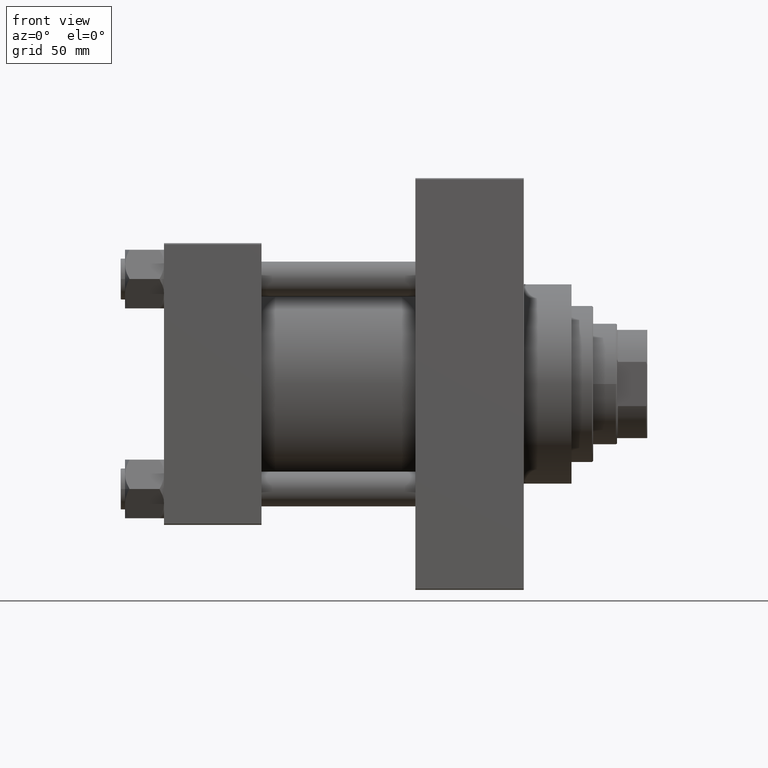
[diagram: clean part render]
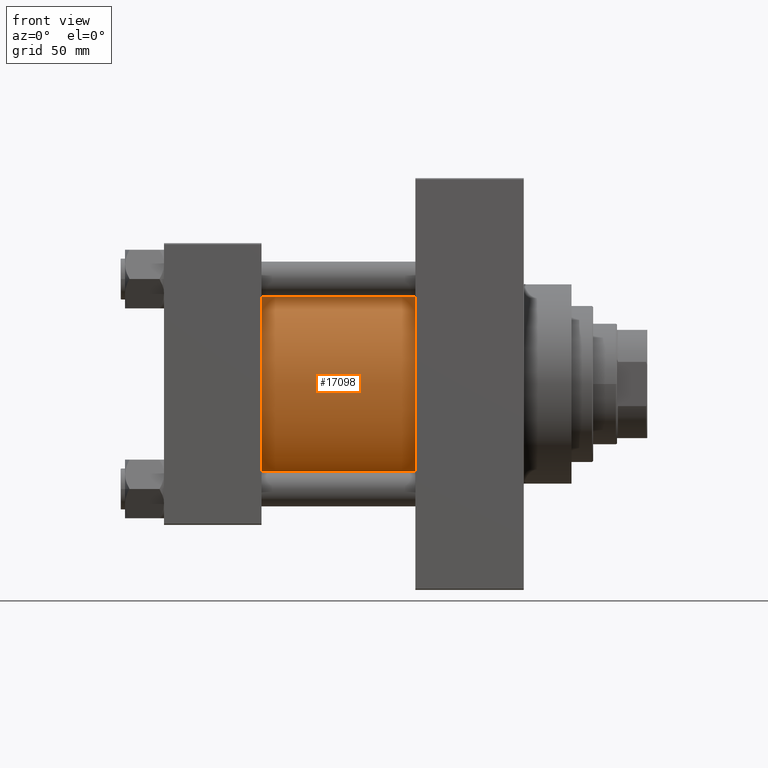
[diagram: same view with one face highlighted and labeled with its STEP entity id]
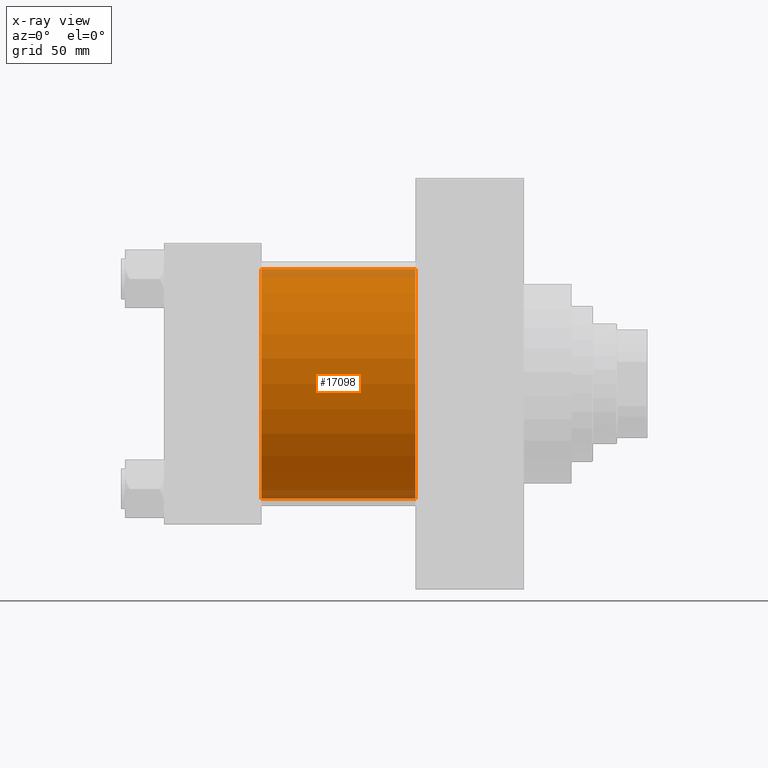
[diagram: x-ray of the same camera — body ghosted, the highlighted face saturated]
A machine part, front view. The second image highlights one B-rep face of the part: STEP entity #17098.
The next image is the same camera in x-ray: the body ghosted, the highlighted face saturated — about 7% of this face is hidden behind the body in this view.
In plain terms, the highlighted cylindrical surface (partial cylindrical patch) has radius 53 mm, axis along (-1, -0, -0).
Its self-contained STEP definition (entity closure, byte-faithful):
#518 = EDGE_CURVE ( 'NONE', #14483, #44959, #17191, .T. ) ;
#519 = CARTESIAN_POINT ( 'NONE',  ( 115.9999999999999858, 3.888542821515762466E-15, -53.00000000000000711 ) ) ;
#743 = ORIENTED_EDGE ( 'NONE', *, *, #13578, .F. ) ;
#2314 = AXIS2_PLACEMENT_3D ( 'NONE', #12711, #28059, #43442 ) ;
#4764 = CIRCLE ( 'NONE', #16859, 53.00000000000000711 ) ;
#6323 = VECTOR ( 'NONE', #17857, 1000.000000000000000 ) ;
#7029 = CARTESIAN_POINT ( 'NONE',  ( 45.00000000000000000, -2.602085213965210642E-15, 53.00000000000000711 ) ) ;
#10184 = VERTEX_POINT ( 'NONE', #12793 ) ;
#12711 = CARTESIAN_POINT ( 'NONE',  ( 115.9999999999999858, -2.602085213965210642E-15, 0.000000000000000000 ) ) ;
#12793 = CARTESIAN_POINT ( 'NONE',  ( 115.9999999999999858, -2.602085213965210642E-15, 53.00000000000000711 ) ) ;
#13578 = EDGE_CURVE ( 'NONE', #19061, #44959, #46410, .T. ) ;
#13959 = CARTESIAN_POINT ( 'NONE',  ( 115.9999999999999858, -2.602085213965210642E-15, 0.000000000000000000 ) ) ;
#14483 = VERTEX_POINT ( 'NONE', #7029 ) ;
#16859 = AXIS2_PLACEMENT_3D ( 'NONE', #13959, #39922, #47738 ) ;
#17098 = ADVANCED_FACE ( 'NONE', ( #27795 ), #24283, .T. ) ;
#17191 = CIRCLE ( 'NONE', #38061, 53.00000000000000711 ) ;
#17857 = DIRECTION ( 'NONE',  ( -1.000000000000000000, -0.000000000000000000, -0.000000000000000000 ) ) ;
#18954 = EDGE_LOOP ( 'NONE', ( #743, #39470, #47635, #40380 ) ) ;
#19061 = VERTEX_POINT ( 'NONE', #35977 ) ;
#20492 = EDGE_CURVE ( 'NONE', #10184, #14483, #30781, .T. ) ;
#21126 = EDGE_CURVE ( 'NONE', #10184, #19061, #4764, .T. ) ;
#24283 = CYLINDRICAL_SURFACE ( 'NONE', #2314, 53.00000000000000711 ) ;
#27795 = FACE_OUTER_BOUND ( 'NONE', #18954, .T. ) ;
#28059 = DIRECTION ( 'NONE',  ( -1.000000000000000000, -0.000000000000000000, -0.000000000000000000 ) ) ;
#29733 = DIRECTION ( 'NONE',  ( 0.000000000000000000, 0.000000000000000000, 1.000000000000000000 ) ) ;
#30781 = LINE ( 'NONE', #35059, #6323 ) ;
#34566 = DIRECTION ( 'NONE',  ( -1.000000000000000000, -0.000000000000000000, -0.000000000000000000 ) ) ;
#35059 = CARTESIAN_POINT ( 'NONE',  ( 115.9999999999999858, -2.602085213965210642E-15, 53.00000000000000711 ) ) ;
#35977 = CARTESIAN_POINT ( 'NONE',  ( 115.9999999999999858, 3.888542821515762466E-15, -53.00000000000000711 ) ) ;
#37293 = DIRECTION ( 'NONE',  ( 1.000000000000000000, -0.000000000000000000, 0.000000000000000000 ) ) ;
#38061 = AXIS2_PLACEMENT_3D ( 'NONE', #48910, #37293, #29733 ) ;
#39470 = ORIENTED_EDGE ( 'NONE', *, *, #21126, .F. ) ;
#39922 = DIRECTION ( 'NONE',  ( 1.000000000000000000, 0.000000000000000000, 0.000000000000000000 ) ) ;
#40231 = CARTESIAN_POINT ( 'NONE',  ( 45.00000000000000000, 3.888542821515762466E-15, -53.00000000000000711 ) ) ;
#40380 = ORIENTED_EDGE ( 'NONE', *, *, #518, .T. ) ;
#43442 = DIRECTION ( 'NONE',  ( 0.000000000000000000, 0.000000000000000000, 1.000000000000000000 ) ) ;
#44959 = VERTEX_POINT ( 'NONE', #40231 ) ;
#46410 = LINE ( 'NONE', #519, #48911 ) ;
#47635 = ORIENTED_EDGE ( 'NONE', *, *, #20492, .T. ) ;
#47738 = DIRECTION ( 'NONE',  ( 0.000000000000000000, 0.000000000000000000, -1.000000000000000000 ) ) ;
#48910 = CARTESIAN_POINT ( 'NONE',  ( 45.00000000000000000, -2.602085213965210642E-15, 0.000000000000000000 ) ) ;
#48911 = VECTOR ( 'NONE', #34566, 1000.000000000000000 ) ;